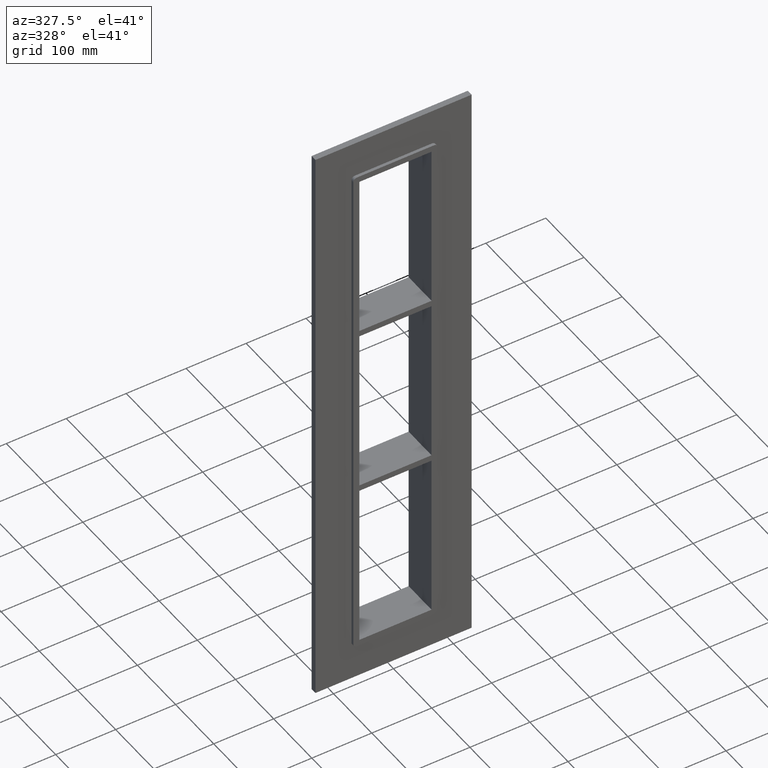
[diagram: clean part render]
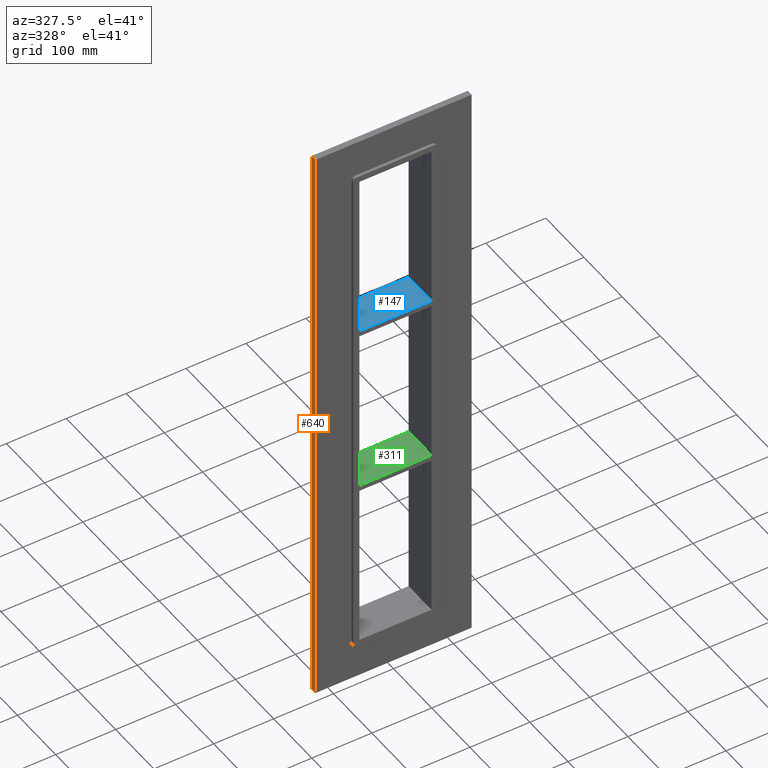
[diagram: same view with three faces highlighted in distinct colors, each labeled with its STEP entity id]
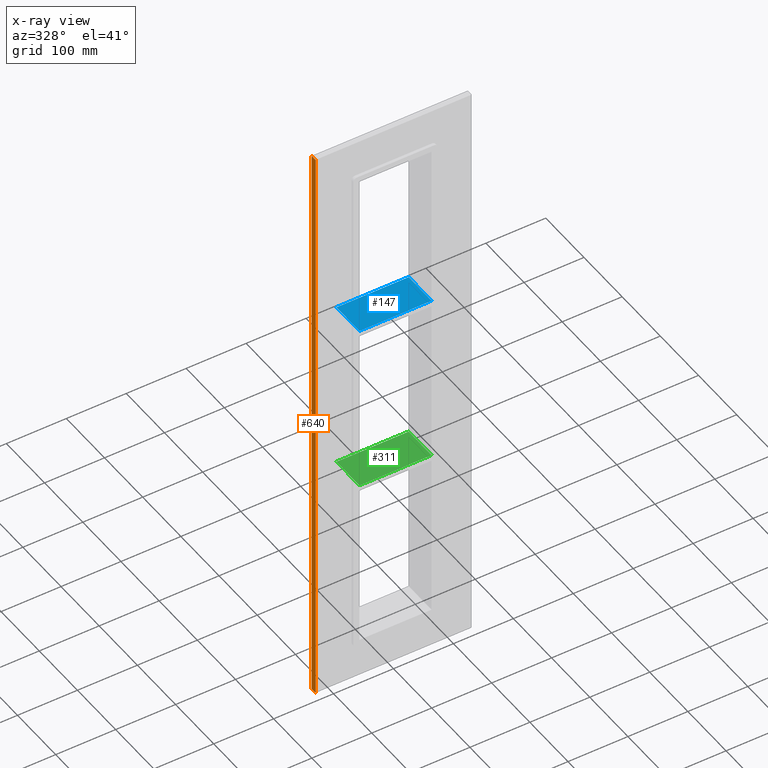
[diagram: x-ray of the same camera — body ghosted, the three highlighted faces saturated]
A machine part, auxiliary view with three faces highlighted in distinct colors.
The next image is the same camera in x-ray (body ghosted, the three faces saturated) — at least one of them is partly hidden behind the body in this view.
Their STEP definitions:

[orange] entity #640 — the highlighted planar face has unit normal (-1, 0, 0).
#372=CARTESIAN_POINT('',(-130.25,10.0,-497.0));
#373=VERTEX_POINT('',#372);
#380=CARTESIAN_POINT('',(-130.25,10.0,497.0));
#381=VERTEX_POINT('',#380);
#382=CARTESIAN_POINT('',(-130.25,10.0,-497.0));
#383=DIRECTION('',(0.0,0.0,1.0));
#384=VECTOR('',#383,994.0);
#385=LINE('',#382,#384);
#386=EDGE_CURVE('',#373,#381,#385,.T.);
#482=CARTESIAN_POINT('',(-130.25,0.0,-497.0));
#483=VERTEX_POINT('',#482);
#498=CARTESIAN_POINT('',(-130.25,0.0,497.0));
#499=VERTEX_POINT('',#498);
#506=CARTESIAN_POINT('',(-130.25,0.0,-497.0));
#507=DIRECTION('',(0.0,0.0,1.0));
#508=VECTOR('',#507,994.0);
#509=LINE('',#506,#508);
#510=EDGE_CURVE('',#483,#499,#509,.T.);
#615=CARTESIAN_POINT('',(-130.25,0.0,497.0));
#616=DIRECTION('',(0.0,1.0,0.0));
#617=VECTOR('',#616,10.0);
#618=LINE('',#615,#617);
#619=EDGE_CURVE('',#499,#381,#618,.T.);
#624=CARTESIAN_POINT('',(-130.25,0.0,-497.0));
#625=DIRECTION('',(-1.0,0.0,0.0));
#626=DIRECTION('',(0.0,0.0,1.0));
#627=AXIS2_PLACEMENT_3D('',#624,#625,#626);
#628=PLANE('',#627);
#629=ORIENTED_EDGE('',*,*,#510,.T.);
#630=ORIENTED_EDGE('',*,*,#619,.T.);
#631=ORIENTED_EDGE('',*,*,#386,.F.);
#632=CARTESIAN_POINT('',(-130.25,0.0,-497.0));
#633=DIRECTION('',(0.0,1.0,0.0));
#634=VECTOR('',#633,10.0);
#635=LINE('',#632,#634);
#636=EDGE_CURVE('',#483,#373,#635,.T.);
#637=ORIENTED_EDGE('',*,*,#636,.F.);
#638=EDGE_LOOP('',(#629,#630,#631,#637));
#639=FACE_OUTER_BOUND('',#638,.T.);
#640=ADVANCED_FACE('',(#639),#628,.T.);

[blue] entity #147 — the highlighted planar face has unit normal (0, 0, 1).
#108=CARTESIAN_POINT('',(-60.25,-5.0,149.00000000000003));
#109=DIRECTION('',(0.0,0.0,1.0));
#110=DIRECTION('',(1.0,0.0,0.0));
#111=AXIS2_PLACEMENT_3D('',#108,#109,#110);
#112=PLANE('',#111);
#113=CARTESIAN_POINT('',(-60.25,-5.0,149.00000000000003));
#114=VERTEX_POINT('',#113);
#115=CARTESIAN_POINT('',(60.250000000000874,-5.0,148.99999999999909));
#116=VERTEX_POINT('',#115);
#117=CARTESIAN_POINT('',(-60.25,-5.0,149.00000000000003));
#118=DIRECTION('',(1.0,0.0,0.0));
#119=VECTOR('',#118,120.50000000000088);
#120=LINE('',#117,#119);
#121=EDGE_CURVE('',#114,#116,#120,.T.);
#122=ORIENTED_EDGE('',*,*,#121,.T.);
#123=CARTESIAN_POINT('',(60.250000000000874,55.0,148.99999999999909));
#124=VERTEX_POINT('',#123);
#125=CARTESIAN_POINT('',(60.25,55.0,148.99999999999912));
#126=DIRECTION('',(0.0,-1.0,0.0));
#127=VECTOR('',#126,60.0);
#128=LINE('',#125,#127);
#129=EDGE_CURVE('',#124,#116,#128,.T.);
#130=ORIENTED_EDGE('',*,*,#129,.F.);
#131=CARTESIAN_POINT('',(-60.25,55.0,149.00000000000003));
#132=VERTEX_POINT('',#131);
#133=CARTESIAN_POINT('',(-60.25,55.0,149.00000000000003));
#134=DIRECTION('',(1.0,0.0,0.0));
#135=VECTOR('',#134,120.50000000000088);
#136=LINE('',#133,#135);
#137=EDGE_CURVE('',#132,#124,#136,.T.);
#138=ORIENTED_EDGE('',*,*,#137,.F.);
#139=CARTESIAN_POINT('',(-60.25,-5.0,149.00000000000003));
#140=DIRECTION('',(0.0,1.0,0.0));
#141=VECTOR('',#140,60.0);
#142=LINE('',#139,#141);
#143=EDGE_CURVE('',#114,#132,#142,.T.);
#144=ORIENTED_EDGE('',*,*,#143,.F.);
#145=EDGE_LOOP('',(#122,#130,#138,#144));
#146=FACE_OUTER_BOUND('',#145,.T.);
#147=ADVANCED_FACE('',(#146),#112,.T.);

[green] entity #311 — the highlighted planar face has unit normal (0, 0, 1).
#185=CARTESIAN_POINT('',(60.250000000000874,55.0,-139.00000000000091));
#186=VERTEX_POINT('',#185);
#193=CARTESIAN_POINT('',(60.250000000000874,-5.0,-139.00000000000091));
#194=VERTEX_POINT('',#193);
#195=CARTESIAN_POINT('',(60.25,55.0,-139.00000000000091));
#196=DIRECTION('',(0.0,-1.0,0.0));
#197=VECTOR('',#196,60.0);
#198=LINE('',#195,#197);
#199=EDGE_CURVE('',#186,#194,#198,.T.);
#281=CARTESIAN_POINT('',(-60.25,-5.0,-139.0));
#282=DIRECTION('',(0.0,0.0,1.0));
#283=DIRECTION('',(1.0,0.0,0.0));
#284=AXIS2_PLACEMENT_3D('',#281,#282,#283);
#285=PLANE('',#284);
#286=CARTESIAN_POINT('',(-60.25,-5.0,-139.0));
#287=VERTEX_POINT('',#286);
#288=CARTESIAN_POINT('',(-60.25,-5.0,-139.0));
#289=DIRECTION('',(1.0,0.0,0.0));
#290=VECTOR('',#289,120.50000000000088);
#291=LINE('',#288,#290);
#292=EDGE_CURVE('',#287,#194,#291,.T.);
#293=ORIENTED_EDGE('',*,*,#292,.T.);
#294=ORIENTED_EDGE('',*,*,#199,.F.);
#295=CARTESIAN_POINT('',(-60.25,55.0,-139.0));
#296=VERTEX_POINT('',#295);
#297=CARTESIAN_POINT('',(-60.25,55.0,-139.0));
#298=DIRECTION('',(1.0,0.0,0.0));
#299=VECTOR('',#298,120.50000000000088);
#300=LINE('',#297,#299);
#301=EDGE_CURVE('',#296,#186,#300,.T.);
#302=ORIENTED_EDGE('',*,*,#301,.F.);
#303=CARTESIAN_POINT('',(-60.25,-5.0,-139.0));
#304=DIRECTION('',(0.0,1.0,0.0));
#305=VECTOR('',#304,60.0);
#306=LINE('',#303,#305);
#307=EDGE_CURVE('',#287,#296,#306,.T.);
#308=ORIENTED_EDGE('',*,*,#307,.F.);
#309=EDGE_LOOP('',(#293,#294,#302,#308));
#310=FACE_OUTER_BOUND('',#309,.T.);
#311=ADVANCED_FACE('',(#310),#285,.T.);